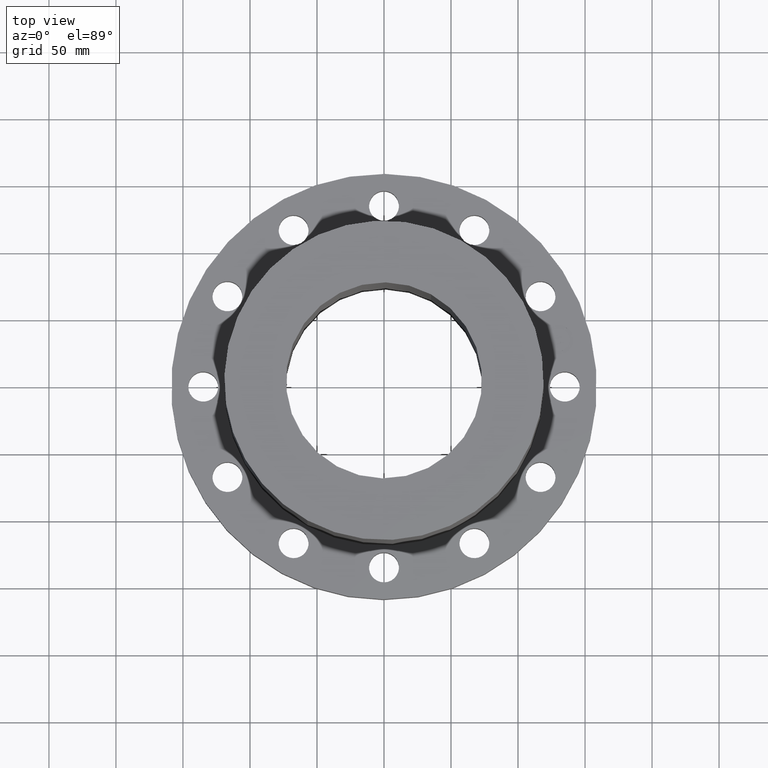
[diagram: clean part render]
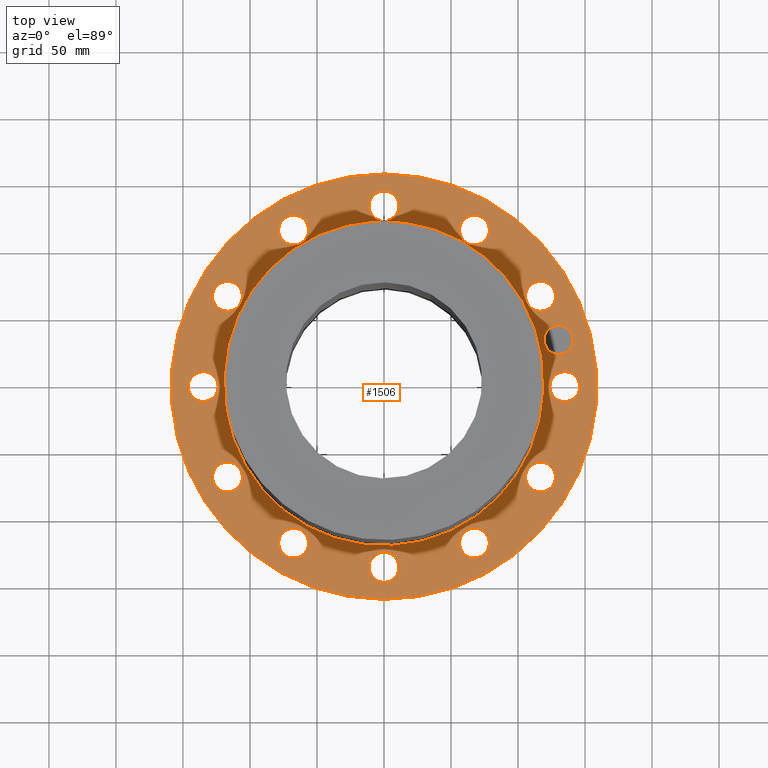
[diagram: same view with one face highlighted and labeled with its STEP entity id]
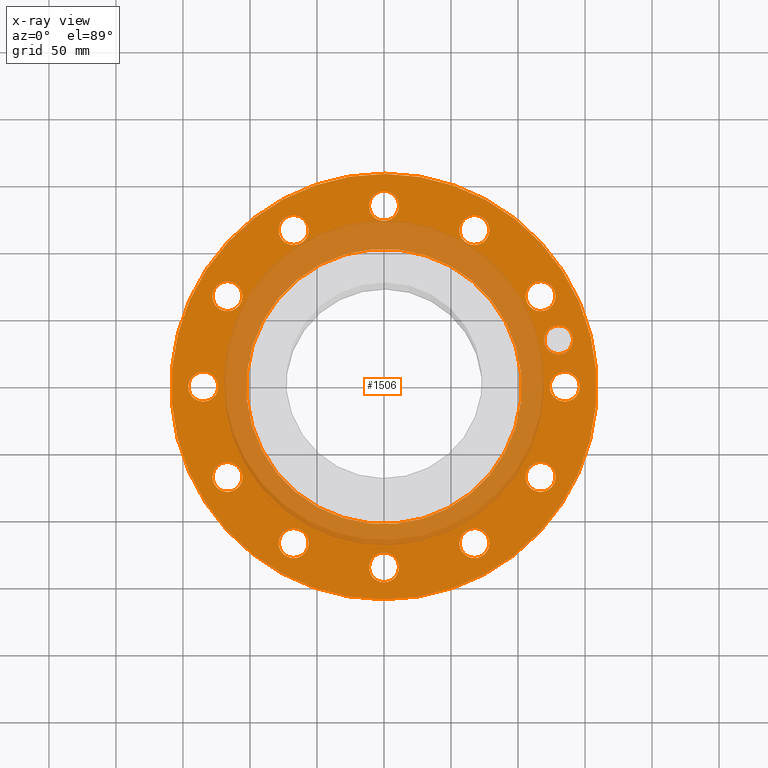
[diagram: x-ray of the same camera — body ghosted, the highlighted face saturated]
A machine part, top view. The second image highlights one B-rep face of the part: STEP entity #1506.
The next image is the same camera in x-ray: the body ghosted, the highlighted face saturated — about 30% of this face is hidden behind the body in this view.
In plain terms, the highlighted planar face has unit normal (0, 0, -1).
Its self-contained STEP definition (entity closure, byte-faithful):
#51=AXIS2_PLACEMENT_3D('Circle Axis2P3D',#49,#50,$) ;
#326=AXIS2_PLACEMENT_3D('Circle Axis2P3D',#324,#325,$) ;
#350=AXIS2_PLACEMENT_3D('Circle Axis2P3D',#348,#349,$) ;
#369=AXIS2_PLACEMENT_3D('Circle Axis2P3D',#367,#368,$) ;
#386=AXIS2_PLACEMENT_3D('Circle Axis2P3D',#384,#385,$) ;
#421=AXIS2_PLACEMENT_3D('Circle Axis2P3D',#419,#420,$) ;
#968=AXIS2_PLACEMENT_3D('Circle Axis2P3D',#966,#967,$) ;
#987=AXIS2_PLACEMENT_3D('Circle Axis2P3D',#985,#986,$) ;
#1011=AXIS2_PLACEMENT_3D('Circle Axis2P3D',#1009,#1010,$) ;
#1030=AXIS2_PLACEMENT_3D('Circle Axis2P3D',#1028,#1029,$) ;
#1054=AXIS2_PLACEMENT_3D('Circle Axis2P3D',#1052,#1053,$) ;
#1073=AXIS2_PLACEMENT_3D('Circle Axis2P3D',#1071,#1072,$) ;
#1097=AXIS2_PLACEMENT_3D('Circle Axis2P3D',#1095,#1096,$) ;
#1116=AXIS2_PLACEMENT_3D('Circle Axis2P3D',#1114,#1115,$) ;
#1140=AXIS2_PLACEMENT_3D('Circle Axis2P3D',#1138,#1139,$) ;
#1159=AXIS2_PLACEMENT_3D('Circle Axis2P3D',#1157,#1158,$) ;
#1183=AXIS2_PLACEMENT_3D('Circle Axis2P3D',#1181,#1182,$) ;
#1202=AXIS2_PLACEMENT_3D('Circle Axis2P3D',#1200,#1201,$) ;
#1226=AXIS2_PLACEMENT_3D('Circle Axis2P3D',#1224,#1225,$) ;
#1245=AXIS2_PLACEMENT_3D('Circle Axis2P3D',#1243,#1244,$) ;
#1269=AXIS2_PLACEMENT_3D('Circle Axis2P3D',#1267,#1268,$) ;
#1288=AXIS2_PLACEMENT_3D('Circle Axis2P3D',#1286,#1287,$) ;
#1312=AXIS2_PLACEMENT_3D('Circle Axis2P3D',#1310,#1311,$) ;
#1331=AXIS2_PLACEMENT_3D('Circle Axis2P3D',#1329,#1330,$) ;
#1355=AXIS2_PLACEMENT_3D('Circle Axis2P3D',#1353,#1354,$) ;
#1374=AXIS2_PLACEMENT_3D('Circle Axis2P3D',#1372,#1373,$) ;
#1398=AXIS2_PLACEMENT_3D('Circle Axis2P3D',#1396,#1397,$) ;
#1417=AXIS2_PLACEMENT_3D('Circle Axis2P3D',#1415,#1416,$) ;
#1430=AXIS2_PLACEMENT_3D('Plane Axis2P3D',#1427,#1428,#1429) ;
#1490=AXIS2_PLACEMENT_3D('Circle Axis2P3D',#1488,#1489,$) ;
#1499=AXIS2_PLACEMENT_3D('Circle Axis2P3D',#1497,#1498,$) ;
#44=CARTESIAN_POINT('Vertex',(4.92386367279,-0.210947236987,1.37750000001)) ;
#49=CARTESIAN_POINT('Axis2P3D Location',(5.31000000002,0.,1.37750000001)) ;
#53=CARTESIAN_POINT('Vertex',(5.69613632725,0.210947236987,1.37750000001)) ;
#324=CARTESIAN_POINT('Axis2P3D Location',(5.31000000002,0.,1.37750000001)) ;
#345=CARTESIAN_POINT('Vertex',(-2.99640961629,-5.48489101184,1.37750000001)) ;
#348=CARTESIAN_POINT('Axis2P3D Location',(0.,0.,1.37750000001)) ;
#352=CARTESIAN_POINT('Vertex',(2.99640961629,5.48489101184,1.37750000001)) ;
#367=CARTESIAN_POINT('Axis2P3D Location',(0.,0.,1.37750000001)) ;
#384=CARTESIAN_POINT('Axis2P3D Location',(0.,0.,1.37750000001)) ;
#388=CARTESIAN_POINT('Vertex',(1.93927630366,3.54982146286,1.37750000001)) ;
#390=CARTESIAN_POINT('Vertex',(-1.93927630366,-3.54982146286,1.37750000001)) ;
#419=CARTESIAN_POINT('Axis2P3D Location',(0.,0.,1.37750000001)) ;
#963=CARTESIAN_POINT('Vertex',(4.15871740691,-2.64461750248,1.37750000001)) ;
#966=CARTESIAN_POINT('Axis2P3D Location',(4.59859489411,-2.65500000001,1.37750000001)) ;
#970=CARTESIAN_POINT('Vertex',(5.03847238132,-2.66538249754,1.37750000001)) ;
#985=CARTESIAN_POINT('Axis2P3D Location',(4.59859489411,-2.65500000001,1.37750000001)) ;
#1006=CARTESIAN_POINT('Vertex',(2.27924617031,-4.3696646439,1.37750000001)) ;
#1009=CARTESIAN_POINT('Axis2P3D Location',(2.65500000001,-4.59859489411,1.37750000001)) ;
#1013=CARTESIAN_POINT('Vertex',(3.03075382972,-4.82752514433,1.37750000001)) ;
#1028=CARTESIAN_POINT('Axis2P3D Location',(2.65500000001,-4.59859489411,1.37750000001)) ;
#1049=CARTESIAN_POINT('Vertex',(-0.210947236987,-4.92386367279,1.37750000001)) ;
#1052=CARTESIAN_POINT('Axis2P3D Location',(-7.9382121303E-016,-5.31000000002,1.37750000001)) ;
#1056=CARTESIAN_POINT('Vertex',(0.210947236987,-5.69613632725,1.37750000001)) ;
#1071=CARTESIAN_POINT('Axis2P3D Location',(-7.9382121303E-016,-5.31000000002,1.37750000001)) ;
#1092=CARTESIAN_POINT('Vertex',(-2.64461750248,-4.15871740691,1.37750000001)) ;
#1095=CARTESIAN_POINT('Axis2P3D Location',(-2.65500000001,-4.59859489411,1.37750000001)) ;
#1099=CARTESIAN_POINT('Vertex',(-2.66538249754,-5.03847238132,1.37750000001)) ;
#1114=CARTESIAN_POINT('Axis2P3D Location',(-2.65500000001,-4.59859489411,1.37750000001)) ;
#1135=CARTESIAN_POINT('Vertex',(-4.3696646439,-2.27924617031,1.37750000001)) ;
#1138=CARTESIAN_POINT('Axis2P3D Location',(-4.59859489411,-2.65500000001,1.37750000001)) ;
#1142=CARTESIAN_POINT('Vertex',(-4.82752514433,-3.03075382972,1.37750000001)) ;
#1157=CARTESIAN_POINT('Axis2P3D Location',(-4.59859489411,-2.65500000001,1.37750000001)) ;
#1178=CARTESIAN_POINT('Vertex',(-4.92386367279,0.210947236987,1.37750000001)) ;
#1181=CARTESIAN_POINT('Axis2P3D Location',(-5.31000000002,-6.5028745035E-016,1.37750000001)) ;
#1185=CARTESIAN_POINT('Vertex',(-5.69613632725,-0.210947236987,1.37750000001)) ;
#1200=CARTESIAN_POINT('Axis2P3D Location',(-5.31000000002,-6.5028745035E-016,1.37750000001)) ;
#1221=CARTESIAN_POINT('Vertex',(-4.15871740691,2.64461750248,1.37750000001)) ;
#1224=CARTESIAN_POINT('Axis2P3D Location',(-4.59859489411,2.65500000001,1.37750000001)) ;
#1228=CARTESIAN_POINT('Vertex',(-5.03847238132,2.66538249754,1.37750000001)) ;
#1243=CARTESIAN_POINT('Axis2P3D Location',(-4.59859489411,2.65500000001,1.37750000001)) ;
#1264=CARTESIAN_POINT('Vertex',(-2.27924617031,4.3696646439,1.37750000001)) ;
#1267=CARTESIAN_POINT('Axis2P3D Location',(-2.65500000001,4.59859489411,1.37750000001)) ;
#1271=CARTESIAN_POINT('Vertex',(-3.03075382972,4.82752514433,1.37750000001)) ;
#1286=CARTESIAN_POINT('Axis2P3D Location',(-2.65500000001,4.59859489411,1.37750000001)) ;
#1307=CARTESIAN_POINT('Vertex',(0.210947236987,4.92386367279,1.37750000001)) ;
#1310=CARTESIAN_POINT('Axis2P3D Location',(-9.75431175525E-016,5.31000000002,1.37750000001)) ;
#1314=CARTESIAN_POINT('Vertex',(-0.210947236987,5.69613632725,1.37750000001)) ;
#1329=CARTESIAN_POINT('Axis2P3D Location',(-9.75431175525E-016,5.31000000002,1.37750000001)) ;
#1350=CARTESIAN_POINT('Vertex',(2.64461750248,4.15871740691,1.37750000001)) ;
#1353=CARTESIAN_POINT('Axis2P3D Location',(2.65500000001,4.59859489411,1.37750000001)) ;
#1357=CARTESIAN_POINT('Vertex',(2.66538249754,5.03847238132,1.37750000001)) ;
#1372=CARTESIAN_POINT('Axis2P3D Location',(2.65500000001,4.59859489411,1.37750000001)) ;
#1393=CARTESIAN_POINT('Vertex',(4.3696646439,2.27924617031,1.37750000001)) ;
#1396=CARTESIAN_POINT('Axis2P3D Location',(4.59859489411,2.65500000001,1.37750000001)) ;
#1400=CARTESIAN_POINT('Vertex',(4.82752514433,3.03075382972,1.37750000001)) ;
#1415=CARTESIAN_POINT('Axis2P3D Location',(4.59859489411,2.65500000001,1.37750000001)) ;
#1427=CARTESIAN_POINT('Axis2P3D Location',(0.,6.25000000002,1.37750000001)) ;
#1488=CARTESIAN_POINT('Axis2P3D Location',(5.12906613762,1.3743291295,1.37750000001)) ;
#1492=CARTESIAN_POINT('Vertex',(5.23906423068,0.963810657431,1.37750000001)) ;
#1494=CARTESIAN_POINT('Vertex',(5.01906804455,1.78484760157,1.37750000001)) ;
#1497=CARTESIAN_POINT('Axis2P3D Location',(5.12906613762,1.3743291295,1.37750000001)) ;
#50=DIRECTION('Axis2P3D Direction',(0.,-0.,0.0393700787402)) ;
#325=DIRECTION('Axis2P3D Direction',(0.,-0.,0.0393700787402)) ;
#349=DIRECTION('Axis2P3D Direction',(0.,0.,-0.0393700787402)) ;
#368=DIRECTION('Axis2P3D Direction',(0.,0.,-0.0393700787402)) ;
#385=DIRECTION('Axis2P3D Direction',(0.,0.,-0.0393700787402)) ;
#420=DIRECTION('Axis2P3D Direction',(0.,0.,-0.0393700787402)) ;
#967=DIRECTION('Axis2P3D Direction',(-0.,0.,0.0393700787402)) ;
#986=DIRECTION('Axis2P3D Direction',(-0.,0.,0.0393700787402)) ;
#1010=DIRECTION('Axis2P3D Direction',(-0.,0.,0.0393700787402)) ;
#1029=DIRECTION('Axis2P3D Direction',(-0.,0.,0.0393700787402)) ;
#1053=DIRECTION('Axis2P3D Direction',(-0.,0.,0.0393700787402)) ;
#1072=DIRECTION('Axis2P3D Direction',(-0.,0.,0.0393700787402)) ;
#1096=DIRECTION('Axis2P3D Direction',(0.,0.,0.0393700787402)) ;
#1115=DIRECTION('Axis2P3D Direction',(0.,0.,0.0393700787402)) ;
#1139=DIRECTION('Axis2P3D Direction',(0.,0.,0.0393700787402)) ;
#1158=DIRECTION('Axis2P3D Direction',(0.,0.,0.0393700787402)) ;
#1182=DIRECTION('Axis2P3D Direction',(0.,0.,0.0393700787402)) ;
#1201=DIRECTION('Axis2P3D Direction',(0.,0.,0.0393700787402)) ;
#1225=DIRECTION('Axis2P3D Direction',(0.,0.,0.0393700787402)) ;
#1244=DIRECTION('Axis2P3D Direction',(0.,0.,0.0393700787402)) ;
#1268=DIRECTION('Axis2P3D Direction',(0.,0.,0.0393700787402)) ;
#1287=DIRECTION('Axis2P3D Direction',(0.,0.,0.0393700787402)) ;
#1311=DIRECTION('Axis2P3D Direction',(0.,0.,0.0393700787402)) ;
#1330=DIRECTION('Axis2P3D Direction',(0.,0.,0.0393700787402)) ;
#1354=DIRECTION('Axis2P3D Direction',(0.,-0.,0.0393700787402)) ;
#1373=DIRECTION('Axis2P3D Direction',(0.,-0.,0.0393700787402)) ;
#1397=DIRECTION('Axis2P3D Direction',(0.,-0.,0.0393700787402)) ;
#1416=DIRECTION('Axis2P3D Direction',(0.,-0.,0.0393700787402)) ;
#1428=DIRECTION('Axis2P3D Direction',(0.,0.,-0.0393700787402)) ;
#1429=DIRECTION('Axis2P3D XDirection',(0.0393700787402,0.,0.)) ;
#1489=DIRECTION('Axis2P3D Direction',(0.,0.,-0.0393700787402)) ;
#1498=DIRECTION('Axis2P3D Direction',(0.,0.,-0.0393700787402)) ;
#1433=ORIENTED_EDGE('',*,*,#371,.F.) ;
#1434=ORIENTED_EDGE('',*,*,#354,.F.) ;
#1437=ORIENTED_EDGE('',*,*,#55,.T.) ;
#1438=ORIENTED_EDGE('',*,*,#328,.T.) ;
#1441=ORIENTED_EDGE('',*,*,#423,.T.) ;
#1442=ORIENTED_EDGE('',*,*,#392,.T.) ;
#1445=ORIENTED_EDGE('',*,*,#989,.T.) ;
#1446=ORIENTED_EDGE('',*,*,#972,.T.) ;
#1449=ORIENTED_EDGE('',*,*,#1032,.T.) ;
#1450=ORIENTED_EDGE('',*,*,#1015,.T.) ;
#1453=ORIENTED_EDGE('',*,*,#1075,.T.) ;
#1454=ORIENTED_EDGE('',*,*,#1058,.T.) ;
#1457=ORIENTED_EDGE('',*,*,#1118,.T.) ;
#1458=ORIENTED_EDGE('',*,*,#1101,.T.) ;
#1461=ORIENTED_EDGE('',*,*,#1161,.T.) ;
#1462=ORIENTED_EDGE('',*,*,#1144,.T.) ;
#1465=ORIENTED_EDGE('',*,*,#1204,.T.) ;
#1466=ORIENTED_EDGE('',*,*,#1187,.T.) ;
#1469=ORIENTED_EDGE('',*,*,#1247,.T.) ;
#1470=ORIENTED_EDGE('',*,*,#1230,.T.) ;
#1473=ORIENTED_EDGE('',*,*,#1290,.T.) ;
#1474=ORIENTED_EDGE('',*,*,#1273,.T.) ;
#1477=ORIENTED_EDGE('',*,*,#1333,.T.) ;
#1478=ORIENTED_EDGE('',*,*,#1316,.T.) ;
#1481=ORIENTED_EDGE('',*,*,#1376,.T.) ;
#1482=ORIENTED_EDGE('',*,*,#1359,.T.) ;
#1485=ORIENTED_EDGE('',*,*,#1419,.T.) ;
#1486=ORIENTED_EDGE('',*,*,#1402,.T.) ;
#1503=ORIENTED_EDGE('',*,*,#1496,.F.) ;
#1504=ORIENTED_EDGE('',*,*,#1501,.F.) ;
#1439=FACE_BOUND('',#1436,.T.) ;
#1443=FACE_BOUND('',#1440,.T.) ;
#1447=FACE_BOUND('',#1444,.T.) ;
#1451=FACE_BOUND('',#1448,.T.) ;
#1455=FACE_BOUND('',#1452,.T.) ;
#1459=FACE_BOUND('',#1456,.T.) ;
#1463=FACE_BOUND('',#1460,.T.) ;
#1467=FACE_BOUND('',#1464,.T.) ;
#1471=FACE_BOUND('',#1468,.T.) ;
#1475=FACE_BOUND('',#1472,.T.) ;
#1479=FACE_BOUND('',#1476,.T.) ;
#1483=FACE_BOUND('',#1480,.T.) ;
#1487=FACE_BOUND('',#1484,.T.) ;
#1505=FACE_BOUND('',#1502,.T.) ;
#1506=ADVANCED_FACE('PartBody',(#1435,#1439,#1443,#1447,#1451,#1455,#1459,#1463,#1467,#1471,#1475,#1479,#1483,#1487,#1505),#1431,.F.) ;
#52=CIRCLE('generated circle',#51,0.440000000002) ;
#327=CIRCLE('generated circle',#326,0.440000000002) ;
#351=CIRCLE('generated circle',#350,6.25000000003) ;
#370=CIRCLE('generated circle',#369,6.25000000003) ;
#387=CIRCLE('generated circle',#386,4.04500000002) ;
#422=CIRCLE('generated circle',#421,4.04500000002) ;
#969=CIRCLE('generated circle',#968,0.440000000002) ;
#988=CIRCLE('generated circle',#987,0.440000000002) ;
#1012=CIRCLE('generated circle',#1011,0.440000000002) ;
#1031=CIRCLE('generated circle',#1030,0.440000000002) ;
#1055=CIRCLE('generated circle',#1054,0.440000000002) ;
#1074=CIRCLE('generated circle',#1073,0.440000000002) ;
#1098=CIRCLE('generated circle',#1097,0.440000000002) ;
#1117=CIRCLE('generated circle',#1116,0.440000000002) ;
#1141=CIRCLE('generated circle',#1140,0.440000000002) ;
#1160=CIRCLE('generated circle',#1159,0.440000000002) ;
#1184=CIRCLE('generated circle',#1183,0.440000000002) ;
#1203=CIRCLE('generated circle',#1202,0.440000000002) ;
#1227=CIRCLE('generated circle',#1226,0.440000000002) ;
#1246=CIRCLE('generated circle',#1245,0.440000000002) ;
#1270=CIRCLE('generated circle',#1269,0.440000000002) ;
#1289=CIRCLE('generated circle',#1288,0.440000000002) ;
#1313=CIRCLE('generated circle',#1312,0.440000000002) ;
#1332=CIRCLE('generated circle',#1331,0.440000000002) ;
#1356=CIRCLE('generated circle',#1355,0.440000000002) ;
#1375=CIRCLE('generated circle',#1374,0.440000000002) ;
#1399=CIRCLE('generated circle',#1398,0.440000000002) ;
#1418=CIRCLE('generated circle',#1417,0.440000000002) ;
#1491=CIRCLE('generated circle',#1490,0.424999995752) ;
#1500=CIRCLE('generated circle',#1499,0.424999995752) ;
#55=EDGE_CURVE('',#54,#45,#52,.F.) ;
#328=EDGE_CURVE('',#45,#54,#327,.F.) ;
#354=EDGE_CURVE('',#346,#353,#351,.T.) ;
#371=EDGE_CURVE('',#353,#346,#370,.T.) ;
#392=EDGE_CURVE('',#389,#391,#387,.T.) ;
#423=EDGE_CURVE('',#391,#389,#422,.T.) ;
#972=EDGE_CURVE('',#971,#964,#969,.F.) ;
#989=EDGE_CURVE('',#964,#971,#988,.F.) ;
#1015=EDGE_CURVE('',#1014,#1007,#1012,.F.) ;
#1032=EDGE_CURVE('',#1007,#1014,#1031,.F.) ;
#1058=EDGE_CURVE('',#1057,#1050,#1055,.F.) ;
#1075=EDGE_CURVE('',#1050,#1057,#1074,.F.) ;
#1101=EDGE_CURVE('',#1100,#1093,#1098,.F.) ;
#1118=EDGE_CURVE('',#1093,#1100,#1117,.F.) ;
#1144=EDGE_CURVE('',#1143,#1136,#1141,.F.) ;
#1161=EDGE_CURVE('',#1136,#1143,#1160,.F.) ;
#1187=EDGE_CURVE('',#1186,#1179,#1184,.F.) ;
#1204=EDGE_CURVE('',#1179,#1186,#1203,.F.) ;
#1230=EDGE_CURVE('',#1229,#1222,#1227,.F.) ;
#1247=EDGE_CURVE('',#1222,#1229,#1246,.F.) ;
#1273=EDGE_CURVE('',#1272,#1265,#1270,.F.) ;
#1290=EDGE_CURVE('',#1265,#1272,#1289,.F.) ;
#1316=EDGE_CURVE('',#1315,#1308,#1313,.F.) ;
#1333=EDGE_CURVE('',#1308,#1315,#1332,.F.) ;
#1359=EDGE_CURVE('',#1358,#1351,#1356,.F.) ;
#1376=EDGE_CURVE('',#1351,#1358,#1375,.F.) ;
#1402=EDGE_CURVE('',#1401,#1394,#1399,.F.) ;
#1419=EDGE_CURVE('',#1394,#1401,#1418,.F.) ;
#1496=EDGE_CURVE('',#1493,#1495,#1491,.F.) ;
#1501=EDGE_CURVE('',#1495,#1493,#1500,.F.) ;
#1432=EDGE_LOOP('',(#1433,#1434)) ;
#1436=EDGE_LOOP('',(#1437,#1438)) ;
#1440=EDGE_LOOP('',(#1441,#1442)) ;
#1444=EDGE_LOOP('',(#1445,#1446)) ;
#1448=EDGE_LOOP('',(#1449,#1450)) ;
#1452=EDGE_LOOP('',(#1453,#1454)) ;
#1456=EDGE_LOOP('',(#1457,#1458)) ;
#1460=EDGE_LOOP('',(#1461,#1462)) ;
#1464=EDGE_LOOP('',(#1465,#1466)) ;
#1468=EDGE_LOOP('',(#1469,#1470)) ;
#1472=EDGE_LOOP('',(#1473,#1474)) ;
#1476=EDGE_LOOP('',(#1477,#1478)) ;
#1480=EDGE_LOOP('',(#1481,#1482)) ;
#1484=EDGE_LOOP('',(#1485,#1486)) ;
#1502=EDGE_LOOP('',(#1503,#1504)) ;
#1435=FACE_OUTER_BOUND('',#1432,.T.) ;
#1431=PLANE('',#1430) ;
#45=VERTEX_POINT('',#44) ;
#54=VERTEX_POINT('',#53) ;
#346=VERTEX_POINT('',#345) ;
#353=VERTEX_POINT('',#352) ;
#389=VERTEX_POINT('',#388) ;
#391=VERTEX_POINT('',#390) ;
#964=VERTEX_POINT('',#963) ;
#971=VERTEX_POINT('',#970) ;
#1007=VERTEX_POINT('',#1006) ;
#1014=VERTEX_POINT('',#1013) ;
#1050=VERTEX_POINT('',#1049) ;
#1057=VERTEX_POINT('',#1056) ;
#1093=VERTEX_POINT('',#1092) ;
#1100=VERTEX_POINT('',#1099) ;
#1136=VERTEX_POINT('',#1135) ;
#1143=VERTEX_POINT('',#1142) ;
#1179=VERTEX_POINT('',#1178) ;
#1186=VERTEX_POINT('',#1185) ;
#1222=VERTEX_POINT('',#1221) ;
#1229=VERTEX_POINT('',#1228) ;
#1265=VERTEX_POINT('',#1264) ;
#1272=VERTEX_POINT('',#1271) ;
#1308=VERTEX_POINT('',#1307) ;
#1315=VERTEX_POINT('',#1314) ;
#1351=VERTEX_POINT('',#1350) ;
#1358=VERTEX_POINT('',#1357) ;
#1394=VERTEX_POINT('',#1393) ;
#1401=VERTEX_POINT('',#1400) ;
#1493=VERTEX_POINT('',#1492) ;
#1495=VERTEX_POINT('',#1494) ;